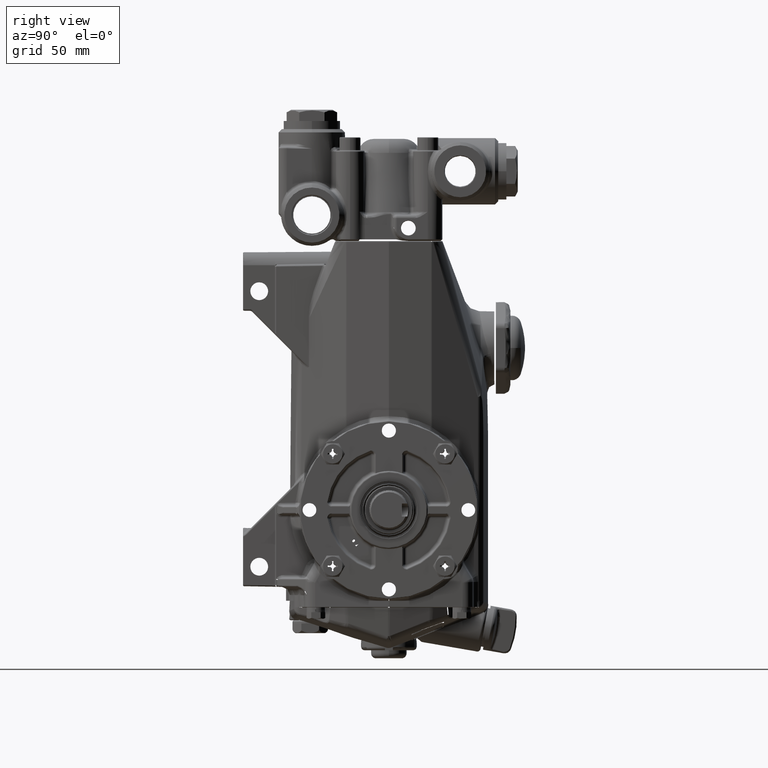
[diagram: clean part render]
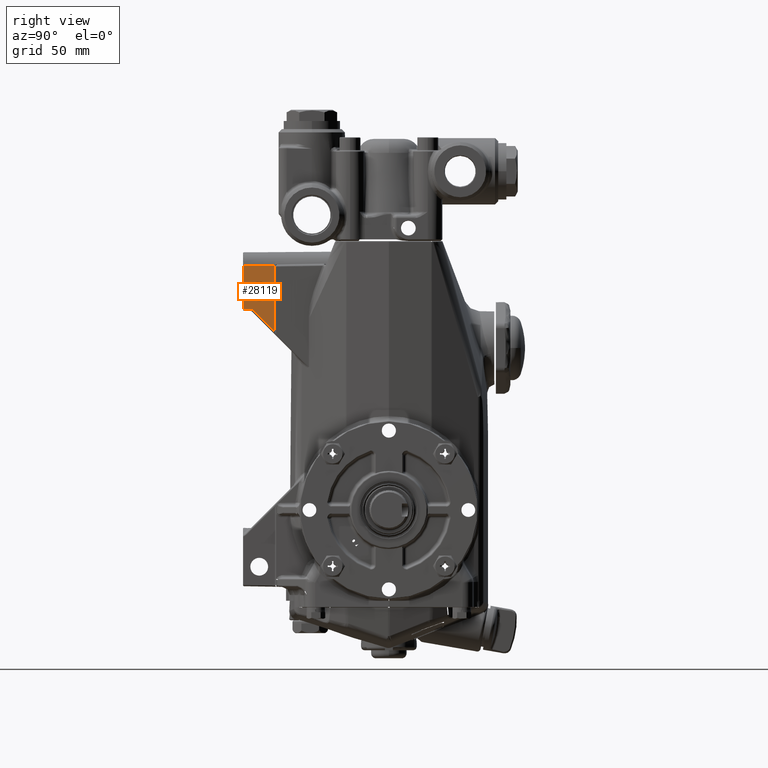
[diagram: same view with one face highlighted and labeled with its STEP entity id]
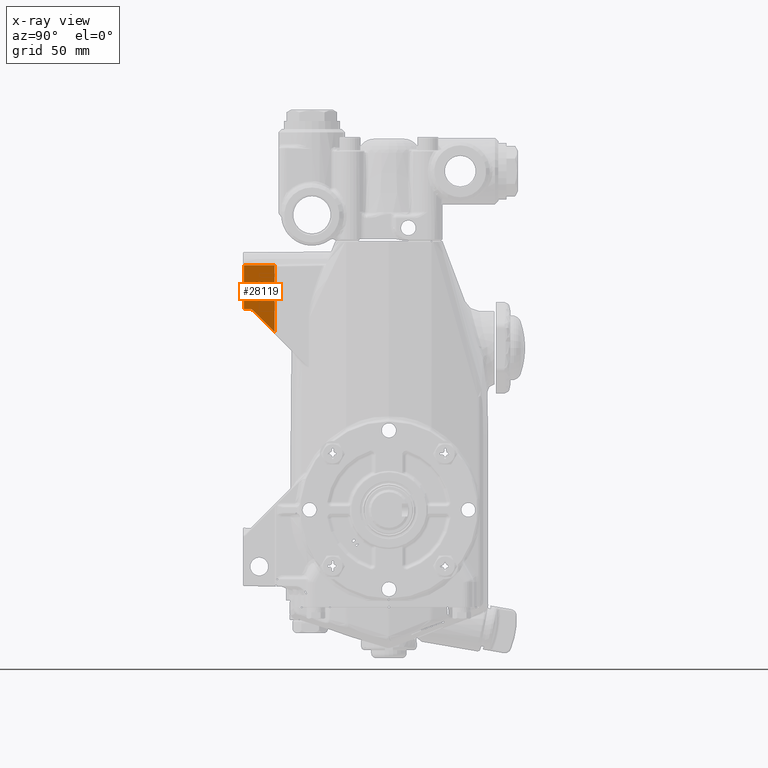
[diagram: x-ray of the same camera — body ghosted, the highlighted face saturated]
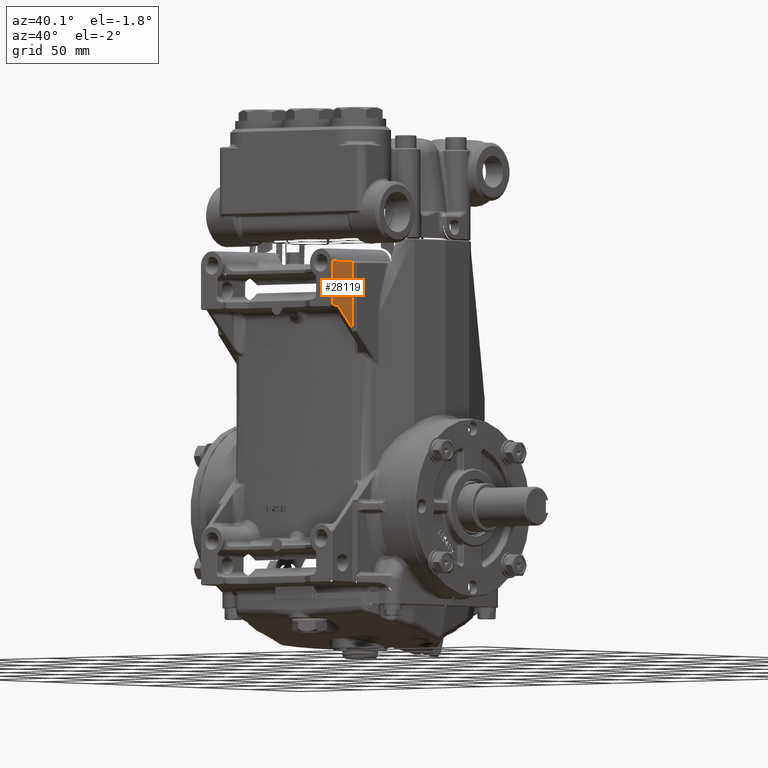
[diagram: same view with one face highlighted and labeled with its STEP entity id]
A machine part, right view. The second image highlights one B-rep face of the part: STEP entity #28119.
The next image is the same camera in x-ray: the body ghosted, the highlighted face saturated — about 0% of this face is hidden behind the body in this view.
A second angle (auxiliary view) of the same face is appended — the face is thin or edge-on in the first view.
In plain terms, the highlighted planar face has unit normal (1, -0.007, 0).
Its self-contained STEP definition (entity closure, byte-faithful):
#117 = LINE ( 'NONE', #78053, #76765 ) ;
#1075 = VERTEX_POINT ( 'NONE', #16046 ) ;
#1597 = CARTESIAN_POINT ( 'NONE',  ( 2.084556624235867517, -3.523759473627934735, 5.944889494269679275 ) ) ;
#2381 = ORIENTED_EDGE ( 'NONE', *, *, #32548, .F. ) ;
#4767 = VERTEX_POINT ( 'NONE', #15496 ) ;
#9251 = CARTESIAN_POINT ( 'NONE',  ( 2.084556624235867517, -3.523759473627912531, 5.905511811023623103 ) ) ;
#9948 = CARTESIAN_POINT ( 'NONE',  ( 2.089869178141568806, -2.762804543461288453, 5.945184391344937147 ) ) ;
#14149 = AXIS2_PLACEMENT_3D ( 'NONE', #47561, #18626, #94682 ) ;
#15067 = CARTESIAN_POINT ( 'NONE',  ( 2.090192202716841141, -2.716535433070864869, 5.531496062992126816 ) ) ;
#15496 = CARTESIAN_POINT ( 'NONE',  ( 2.087168748593397627, -3.149606299212598604, 5.531496062992126816 ) ) ;
#16046 = CARTESIAN_POINT ( 'NONE',  ( 2.084556624235867517, -3.523759473627912531, 4.881549758519839521 ) ) ;
#18224 = EDGE_CURVE ( 'NONE', #28709, #4767, #41232, .T. ) ;
#18626 = DIRECTION ( 'NONE',  ( 0.9999756307053948579, -0.006981260297961569029, 0.000000000000000000 ) ) ;
#18806 = ORIENTED_EDGE ( 'NONE', *, *, #60078, .F. ) ;
#19005 = CARTESIAN_POINT ( 'NONE',  ( 2.089780872950927293, -2.775453124797284676, 4.310198057368594959 ) ) ;
#19533 = CARTESIAN_POINT ( 'NONE',  ( 2.089780872950927293, -2.775453124797284676, 4.326918963461666046 ) ) ;
#27891 = ORIENTED_EDGE ( 'NONE', *, *, #18224, .T. ) ;
#28119 = ADVANCED_FACE ( 'NONE', ( #34415, #111029 ), #82773, .T. ) ;
#28709 = VERTEX_POINT ( 'NONE', #59158 ) ;
#30128 = CARTESIAN_POINT ( 'NONE',  ( 2.085816078940400775, -3.343358806877500200, 4.878400853168617601 ) ) ;
#32548 = EDGE_CURVE ( 'NONE', #44804, #120319, #117, .T. ) ;
#32661 = CARTESIAN_POINT ( 'NONE',  ( 2.084145294469954557, -3.582677165354332338, 5.098425196850394414 ) ) ;
#33068 = EDGE_CURVE ( 'NONE', #120319, #72411, #56862, .T. ) ;
#34415 = FACE_BOUND ( 'NONE', #56678, .T. ) ;
#36382 = CARTESIAN_POINT ( 'NONE',  ( 2.084849108191365818, -3.481864913707759968, 5.944905788165059768 ) ) ;
#37548 = DIRECTION ( 'NONE',  ( -0.000000000000000000, -0.000000000000000000, 1.000000000000000000 ) ) ;
#40864 = CARTESIAN_POINT ( 'NONE',  ( 2.084145294469954557, -3.582677165354332338, 5.531496062992126816 ) ) ;
#41232 =( BOUNDED_CURVE ( )  B_SPLINE_CURVE ( 3, ( #50921, #32661, #40864, #70392 ),
 .UNSPECIFIED., .F., .T. ) 
 B_SPLINE_CURVE_WITH_KNOTS ( ( 4, 4 ),
 ( 1.570796326794896558, 4.712388980384689674 ),
 .UNSPECIFIED. ) 
 CURVE ( )  GEOMETRIC_REPRESENTATION_ITEM ( )  RATIONAL_B_SPLINE_CURVE ( ( 1.000000000000000000, 0.3333333333333333703, 0.3333333333333333703, 1.000000000000000000 ) ) 
 REPRESENTATION_ITEM ( '' )  );
#43502 = VECTOR ( 'NONE', #59852, 39.37007874015748854 ) ;
#43591 = VECTOR ( 'NONE', #37548, 39.37007874015748143 ) ;
#44804 = VERTEX_POINT ( 'NONE', #19533 ) ;
#45199 = EDGE_CURVE ( 'NONE', #4767, #28709, #118087, .T. ) ;
#47052 = EDGE_CURVE ( 'NONE', #48437, #49962, #70821, .T. ) ;
#47561 = CARTESIAN_POINT ( 'NONE',  ( 2.084420153935721665, -3.543307086614173151, 5.905511811023623103 ) ) ;
#48437 = VERTEX_POINT ( 'NONE', #79072 ) ;
#49962 = VERTEX_POINT ( 'NONE', #108587 ) ;
#50921 = CARTESIAN_POINT ( 'NONE',  ( 2.087168748593397627, -3.149606299212598604, 5.098425196850394414 ) ) ;
#52833 = EDGE_CURVE ( 'NONE', #72411, #1075, #99393, .T. ) ;
#53446 = CARTESIAN_POINT ( 'NONE',  ( 2.090192202716841141, -2.716535433070864869, 5.098425196850394414 ) ) ;
#54041 = ORIENTED_EDGE ( 'NONE', *, *, #47052, .F. ) ;
#56461 = ORIENTED_EDGE ( 'NONE', *, *, #45199, .T. ) ;
#56502 = CARTESIAN_POINT ( 'NONE',  ( 2.086619959492435505, -3.228213270437966020, 5.945004394074826060 ) ) ;
#56678 = EDGE_LOOP ( 'NONE', ( #27891, #56461 ) ) ;
#56862 =( BOUNDED_CURVE ( )  B_SPLINE_CURVE ( 3, ( #58435, #107392, #30128, #67231 ),
 .UNSPECIFIED., .F., .F. ) 
 B_SPLINE_CURVE_WITH_KNOTS ( ( 4, 4 ),
 ( 0.7853981633974516097, 1.553343034274953682 ),
 .UNSPECIFIED. ) 
 CURVE ( )  GEOMETRIC_REPRESENTATION_ITEM ( )  RATIONAL_B_SPLINE_CURVE ( ( 1.000000000000000000, 0.9514559030445252086, 0.9514559030445252086, 1.000000000000000000 ) ) 
 REPRESENTATION_ITEM ( '' )  );
#58034 = CARTESIAN_POINT ( 'NONE',  ( 2.085599676927719859, -3.374355608297334275, 4.878941904349967551 ) ) ;
#58343 = CARTESIAN_POINT ( 'NONE',  ( 2.084995350169125850, -3.460917633746199762, 5.944913931323807965 ) ) ;
#58435 = CARTESIAN_POINT ( 'NONE',  ( 2.086168351026743473, -3.292900367185216837, 4.844366205849592433 ) ) ;
#59158 = CARTESIAN_POINT ( 'NONE',  ( 2.087168748593397627, -3.149606299212598604, 5.098425196850394414 ) ) ;
#59852 = DIRECTION ( 'NONE',  ( -0.006980197070013981209, -0.9998233369945037641, 0.01745198126398627217 ) ) ;
#60078 = EDGE_CURVE ( 'NONE', #49962, #44804, #113890, .T. ) ;
#60596 = B_SPLINE_CURVE_WITH_KNOTS ( 'NONE', 3,
 ( #67755, #124295, #36382, #58343, #56502, #74734, #9948 ),
 .UNSPECIFIED., .F., .F.,
 ( 4, 3, 4 ),
 ( 0.01630800415470986739, 0.01790422590718175264, 0.03563673185972683621 ),
 .UNSPECIFIED. ) ;
#67231 = CARTESIAN_POINT ( 'NONE',  ( 2.085599676927719859, -3.374355608297334275, 4.878941904349967551 ) ) ;
#67755 = CARTESIAN_POINT ( 'NONE',  ( 2.084556624235867517, -3.523759473627934735, 5.944889494269679275 ) ) ;
#69231 = DIRECTION ( 'NONE',  ( -0.004936556647752253675, -0.7070981651823439185, 0.7070981651823361469 ) ) ;
#70392 = CARTESIAN_POINT ( 'NONE',  ( 2.087168748593397627, -3.149606299212598604, 5.531496062992126816 ) ) ;
#70821 = B_SPLINE_CURVE_WITH_KNOTS ( 'NONE', 3,
 ( #83661, #123226, #120745, #121976 ),
 .UNSPECIFIED., .F., .F.,
 ( 4, 4 ),
 ( 0.000000000000000000, 0.001028696793800201736 ),
 .UNSPECIFIED. ) ;
#71652 = CARTESIAN_POINT ( 'NONE',  ( 2.087168748593397627, -3.149606299212598604, 5.531496062992126816 ) ) ;
#72151 = VECTOR ( 'NONE', #107414, 39.37007874015748143 ) ;
#72411 = VERTEX_POINT ( 'NONE', #58034 ) ;
#73374 = ORIENTED_EDGE ( 'NONE', *, *, #116477, .F. ) ;
#74734 = CARTESIAN_POINT ( 'NONE',  ( 2.088244568816591595, -2.995508907008436417, 5.945094545305855682 ) ) ;
#76765 = VECTOR ( 'NONE', #69231, 39.37007874015748143 ) ;
#78053 = CARTESIAN_POINT ( 'NONE',  ( 2.081590164339029325, -3.948666650798967392, 5.500132489463336327 ) ) ;
#79072 = CARTESIAN_POINT ( 'NONE',  ( 2.089869178141568806, -2.762804543461288453, 5.945184391344937147 ) ) ;
#82773 = PLANE ( 'NONE',  #14149 ) ;
#83661 = CARTESIAN_POINT ( 'NONE',  ( 2.089869178141568806, -2.762804543461288453, 5.945184391344937147 ) ) ;
#85457 = EDGE_CURVE ( 'NONE', #1075, #87000, #123623, .T. ) ;
#87000 = VERTEX_POINT ( 'NONE', #1597 ) ;
#89722 = EDGE_LOOP ( 'NONE', ( #54041, #73374, #97226, #106605, #95365, #2381, #18806 ) ) ;
#94682 = DIRECTION ( 'NONE',  ( -0.006981260297961569029, -0.9999756307053948579, 0.000000000000000000 ) ) ;
#95365 = ORIENTED_EDGE ( 'NONE', *, *, #33068, .F. ) ;
#97226 = ORIENTED_EDGE ( 'NONE', *, *, #85457, .F. ) ;
#99393 = LINE ( 'NONE', #119460, #43502 ) ;
#106605 = ORIENTED_EDGE ( 'NONE', *, *, #52833, .F. ) ;
#107392 = CARTESIAN_POINT ( 'NONE',  ( 2.086015308386980127, -3.314821754397726306, 4.866287593062100569 ) ) ;
#107414 = DIRECTION ( 'NONE',  ( 0.000000000000000000, 0.000000000000000000, -1.000000000000000000 ) ) ;
#108587 = CARTESIAN_POINT ( 'NONE',  ( 2.089780872950927293, -2.775453124797285120, 5.907504427158617233 ) ) ;
#111029 = FACE_OUTER_BOUND ( 'NONE', #89722, .T. ) ;
#111182 = CARTESIAN_POINT ( 'NONE',  ( 2.087168748593397627, -3.149606299212598604, 5.098425196850394414 ) ) ;
#113890 = LINE ( 'NONE', #19005, #72151 ) ;
#116477 = EDGE_CURVE ( 'NONE', #87000, #48437, #60596, .T. ) ;
#118087 =( BOUNDED_CURVE ( )  B_SPLINE_CURVE ( 3, ( #71652, #15067, #53446, #111182 ),
 .UNSPECIFIED., .F., .F. ) 
 B_SPLINE_CURVE_WITH_KNOTS ( ( 4, 4 ),
 ( 4.712388980384689674, 7.853981633974482790 ),
 .UNSPECIFIED. ) 
 CURVE ( )  GEOMETRIC_REPRESENTATION_ITEM ( )  RATIONAL_B_SPLINE_CURVE ( ( 1.000000000000000000, 0.3333333333333333703, 0.3333333333333333703, 1.000000000000000000 ) ) 
 REPRESENTATION_ITEM ( '' )  );
#119166 = CARTESIAN_POINT ( 'NONE',  ( 2.086168351026743473, -3.292900367185216837, 4.844366205849592433 ) ) ;
#119460 = CARTESIAN_POINT ( 'NONE',  ( 2.084295458216475883, -3.561168142523428060, 4.882202729264288443 ) ) ;
#120319 = VERTEX_POINT ( 'NONE', #119166 ) ;
#120745 = CARTESIAN_POINT ( 'NONE',  ( 2.089780872950927293, -2.775453124797285120, 5.920944017381871483 ) ) ;
#121976 = CARTESIAN_POINT ( 'NONE',  ( 2.089780872950927293, -2.775453124797285120, 5.907504427158617233 ) ) ;
#123226 = CARTESIAN_POINT ( 'NONE',  ( 2.089812751661898726, -2.770886909995160075, 5.934297194549046139 ) ) ;
#123623 = LINE ( 'NONE', #9251, #43591 ) ;
#124295 = CARTESIAN_POINT ( 'NONE',  ( 2.084702866213613337, -3.502812193668338736, 5.944897642481919320 ) ) ;